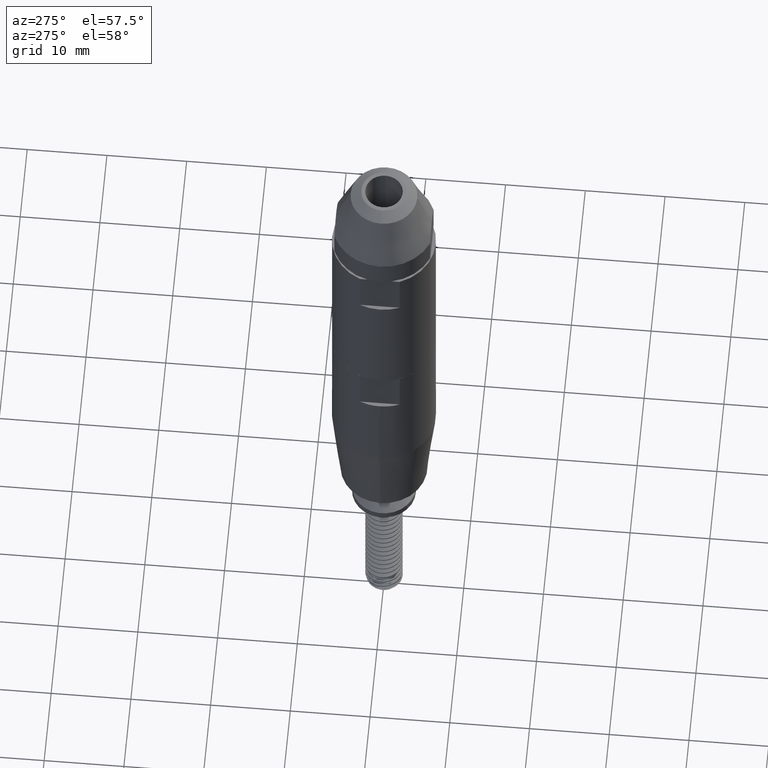
[diagram: clean part render]
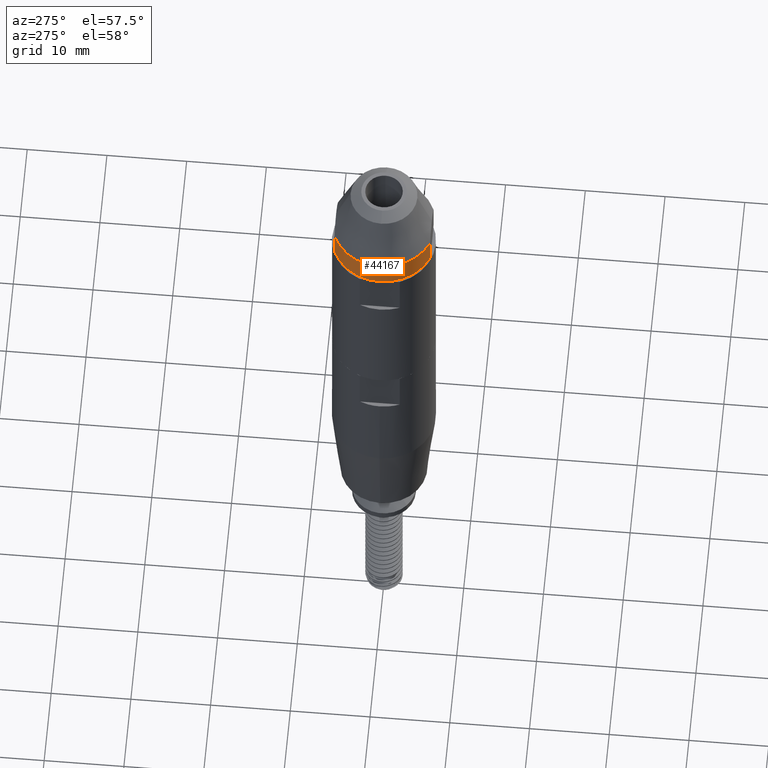
[diagram: same view with one face highlighted and labeled with its STEP entity id]
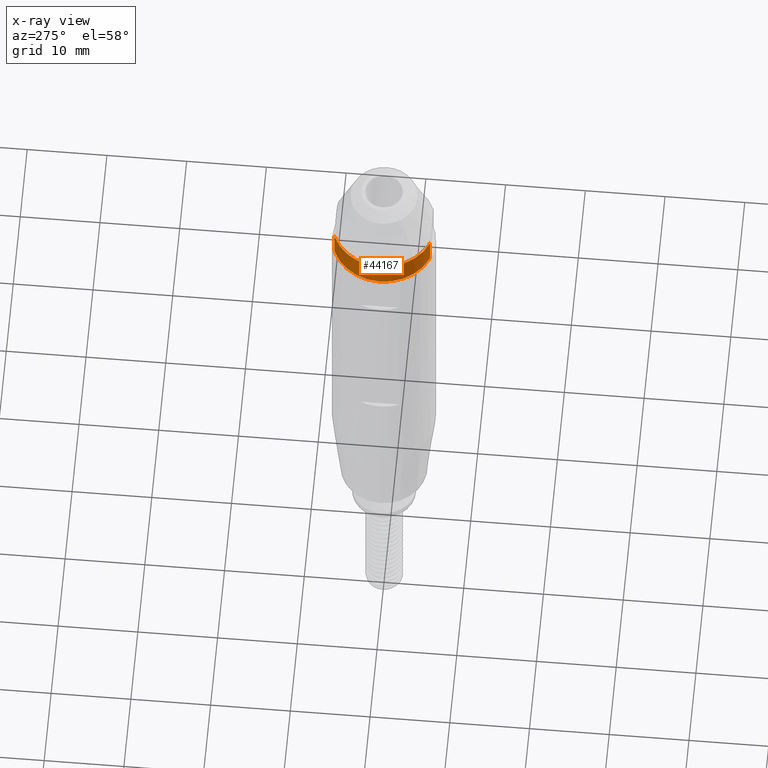
[diagram: x-ray of the same camera — body ghosted, the highlighted face saturated]
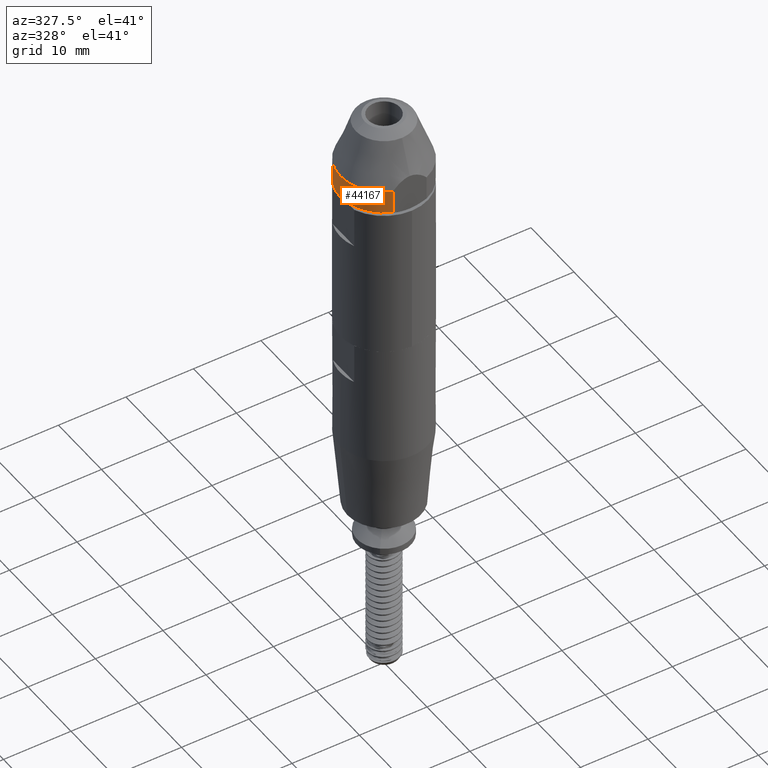
[diagram: same view with one face highlighted and labeled with its STEP entity id]
A machine part, auxiliary view. The second image highlights one B-rep face of the part: STEP entity #44167.
The next image is the same camera in x-ray: the body ghosted, the highlighted face saturated — about 0% of this face is hidden behind the body in this view.
A second angle (auxiliary view) of the same face is appended — the face is thin or edge-on in the first view.
In plain terms, the highlighted cylindrical surface (partial cylindrical patch) has radius 6.5 mm, axis along (0, 0, 1).
Its self-contained STEP definition (entity closure, byte-faithful):
#1979 = DIRECTION ( 'NONE',  ( 1.000000000000000000, 0.000000000000000000, 0.000000000000000000 ) ) ;
#4247 = EDGE_LOOP ( 'NONE', ( #158428, #16843, #158655, #118918 ) ) ;
#5695 = CARTESIAN_POINT ( 'NONE',  ( -2.499999999999999112, 6.000000000000000000, 0.4999999999999223954 ) ) ;
#10953 = DIRECTION ( 'NONE',  ( -0.000000000000000000, -0.000000000000000000, 1.000000000000000000 ) ) ;
#16843 = ORIENTED_EDGE ( 'NONE', *, *, #111277, .T. ) ;
#23263 = AXIS2_PLACEMENT_3D ( 'NONE', #80138, #137679, #1979 ) ;
#31732 = EDGE_CURVE ( 'NONE', #194128, #111236, #56509, .T. ) ;
#33462 = VERTEX_POINT ( 'NONE', #85796 ) ;
#44167 = ADVANCED_FACE ( 'NONE', ( #110830 ), #109858, .T. ) ;
#52791 = CARTESIAN_POINT ( 'NONE',  ( -2.499999999999998668, -6.000000000000000000, 4.000000000000000000 ) ) ;
#56509 = LINE ( 'NONE', #194188, #102999 ) ;
#60330 = CARTESIAN_POINT ( 'NONE',  ( -2.499999999999999112, 6.000000000000000000, 4.000000000000000000 ) ) ;
#63887 = EDGE_CURVE ( 'NONE', #33462, #144822, #140968, .T. ) ;
#65666 = DIRECTION ( 'NONE',  ( -0.000000000000000000, -0.000000000000000000, 1.000000000000000000 ) ) ;
#67451 = AXIS2_PLACEMENT_3D ( 'NONE', #120715, #181215, #182198 ) ;
#73995 = CIRCLE ( 'NONE', #181531, 6.499999999999999112 ) ;
#80138 = CARTESIAN_POINT ( 'NONE',  ( 0.000000000000000000, 0.000000000000000000, -8.673617379884035472E-16 ) ) ;
#85796 = CARTESIAN_POINT ( 'NONE',  ( -2.499999999999998668, -6.000000000000000000, 0.4999999999999223954 ) ) ;
#87416 = DIRECTION ( 'NONE',  ( -0.3846153846154060640, -0.9230769230769141354, 0.000000000000000000 ) ) ;
#89503 = CIRCLE ( 'NONE', #67451, 6.500000000000000000 ) ;
#102999 = VECTOR ( 'NONE', #10953, 1000.000000000000000 ) ;
#109858 = CYLINDRICAL_SURFACE ( 'NONE', #23263, 6.500000000000000000 ) ;
#110830 = FACE_OUTER_BOUND ( 'NONE', #4247, .T. ) ;
#111236 = VERTEX_POINT ( 'NONE', #60330 ) ;
#111277 = EDGE_CURVE ( 'NONE', #194128, #33462, #89503, .T. ) ;
#118918 = ORIENTED_EDGE ( 'NONE', *, *, #121545, .T. ) ;
#120715 = CARTESIAN_POINT ( 'NONE',  ( 0.000000000000000000, 0.000000000000000000, 0.4999999999999223954 ) ) ;
#121545 = EDGE_CURVE ( 'NONE', #144822, #111236, #73995, .T. ) ;
#125269 = VECTOR ( 'NONE', #65666, 1000.000000000000000 ) ;
#137679 = DIRECTION ( 'NONE',  ( -0.000000000000000000, -0.000000000000000000, 1.000000000000000000 ) ) ;
#140968 = LINE ( 'NONE', #144873, #125269 ) ;
#144822 = VERTEX_POINT ( 'NONE', #52791 ) ;
#144873 = CARTESIAN_POINT ( 'NONE',  ( -2.499999999999998668, -6.000000000000000000, -8.673617379884035472E-16 ) ) ;
#158428 = ORIENTED_EDGE ( 'NONE', *, *, #31732, .F. ) ;
#158655 = ORIENTED_EDGE ( 'NONE', *, *, #63887, .T. ) ;
#160772 = DIRECTION ( 'NONE',  ( 0.000000000000000000, 0.000000000000000000, -1.000000000000000000 ) ) ;
#178579 = CARTESIAN_POINT ( 'NONE',  ( 0.000000000000000000, 0.000000000000000000, 4.000000000000000000 ) ) ;
#181215 = DIRECTION ( 'NONE',  ( 0.000000000000000000, 0.000000000000000000, 1.000000000000000000 ) ) ;
#181531 = AXIS2_PLACEMENT_3D ( 'NONE', #178579, #160772, #87416 ) ;
#182198 = DIRECTION ( 'NONE',  ( 1.000000000000000000, 0.000000000000000000, 0.000000000000000000 ) ) ;
#194128 = VERTEX_POINT ( 'NONE', #5695 ) ;
#194188 = CARTESIAN_POINT ( 'NONE',  ( -2.499999999999999112, 6.000000000000000000, -8.673617379884035472E-16 ) ) ;